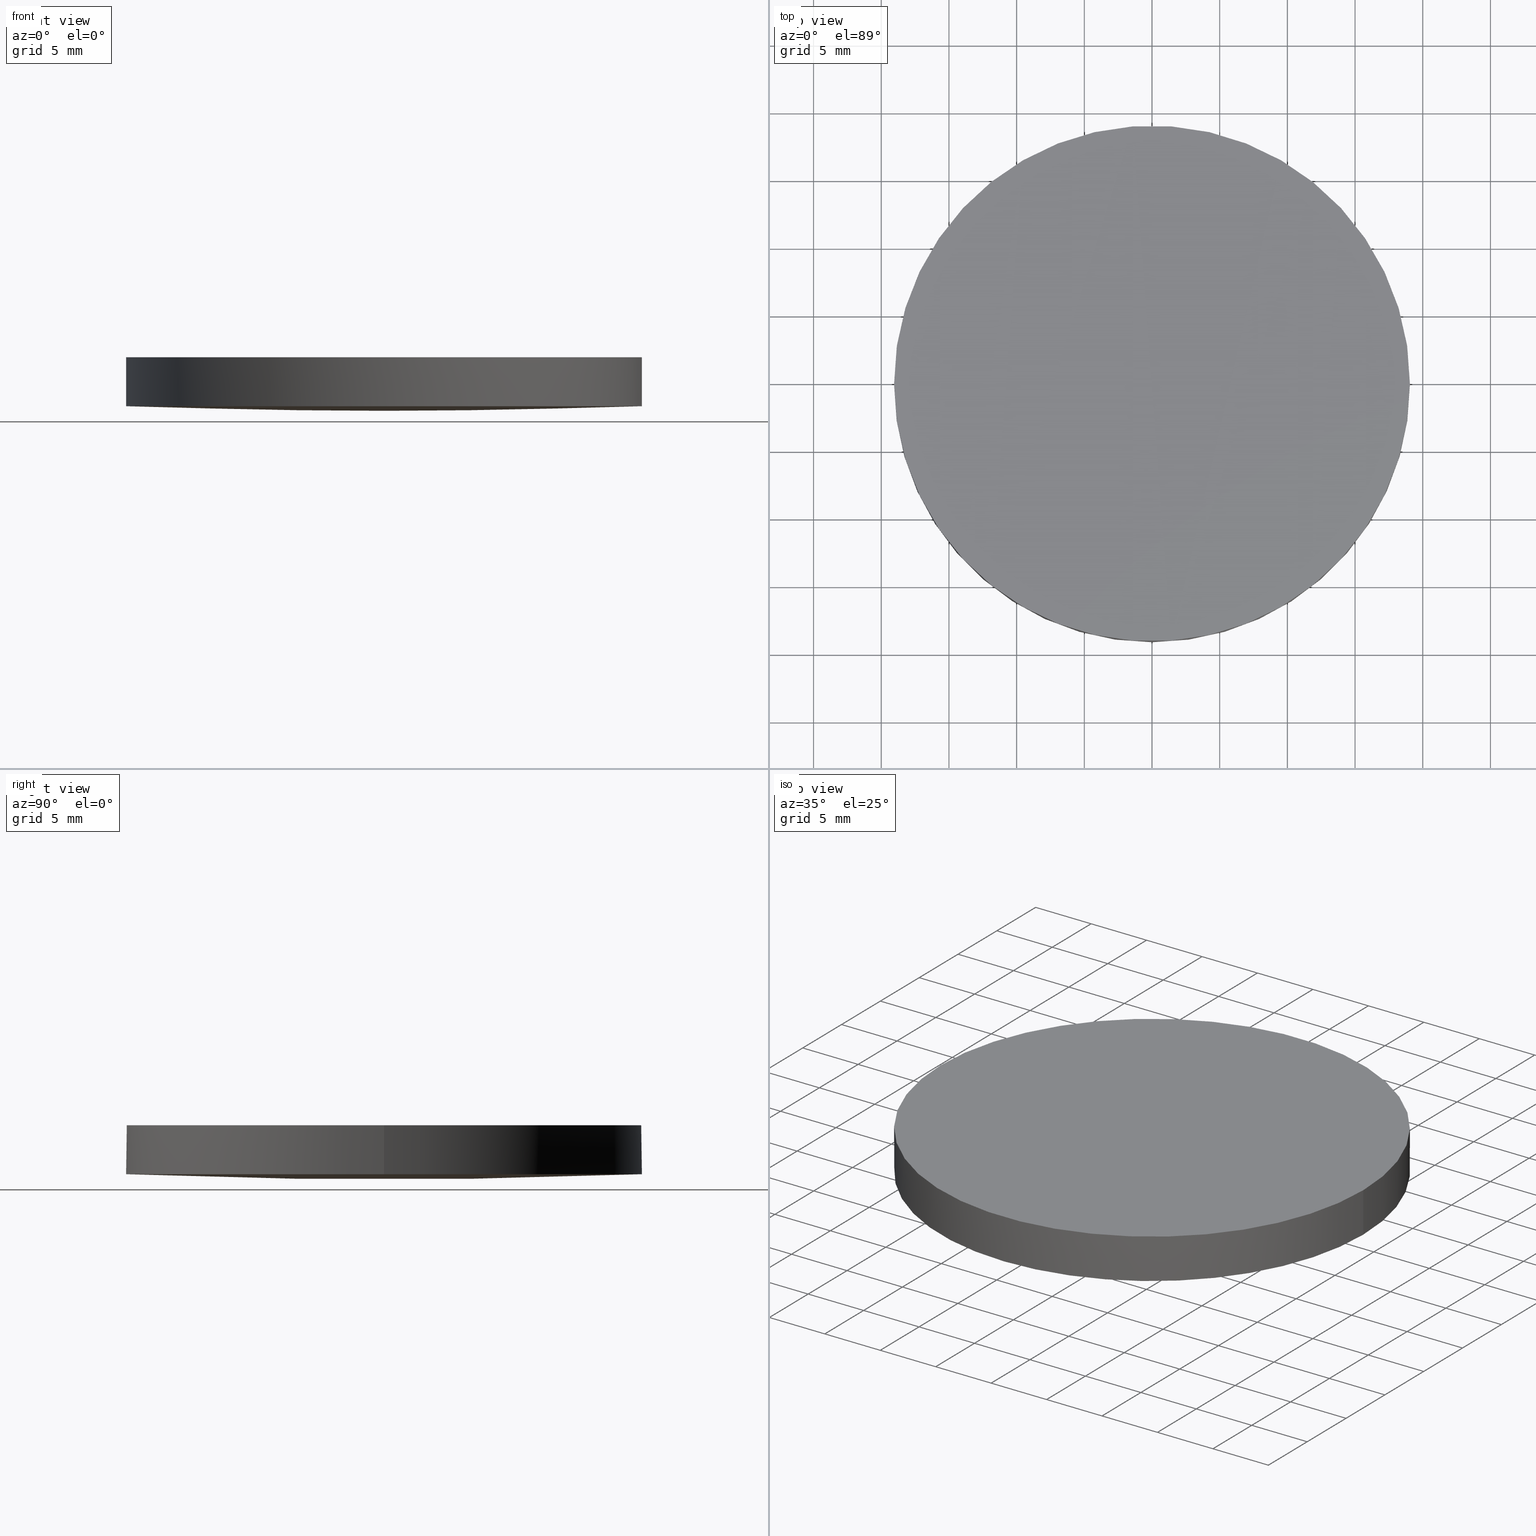
[diagram: canonical four-view strip — front | top / right | iso, engineering-drawing reading convention]
A machine part, canonical four-view strip (front | top / right | iso — engineering-drawing reading convention). The complete STEP part file that produces these views, byte-faithful:
ISO-10303-21;
HEADER;
FILE_DESCRIPTION (( 'STEP AP203' ),
    '1' );
FILE_NAME ('110-1445E UVFS pl-cx 38.1 F1000.STEP',
    '2018-12-13T15:04:24',
    ( '' ),
    ( '' ),
    'SwSTEP 2.0',
    'SolidWorks 2017',
    '' );
FILE_SCHEMA (( 'CONFIG_CONTROL_DESIGN' ));
ENDSEC;

DATA;
#1 = DIRECTION ( 'NONE',  ( 0.0000000000000000000, 0.0000000000000000000, 1.000000000000000000 ) ) ;
#2 = DESIGN_CONTEXT ( 'detailed design', #6, 'design' ) ;
#3 = PERSON_AND_ORGANIZATION ( #91, #162 ) ;
#4 = DIRECTION ( 'NONE',  ( 1.000000000000000000, 0.0000000000000000000, 0.0000000000000000000 ) ) ;
#5 = AXIS2_PLACEMENT_3D ( 'NONE', #37, #132, #112 ) ;
#6 = APPLICATION_CONTEXT ( 'configuration controlled 3d designs of mechanical parts and assemblies' ) ;
#7 = DATE_TIME_ROLE ( 'creation_date' ) ;
#8 =( LENGTH_UNIT ( ) NAMED_UNIT ( * ) SI_UNIT ( .MILLI., .METRE. ) );
#9 = ORIENTED_EDGE ( 'NONE', *, *, #221, .F. ) ;
#10 = APPROVAL_ROLE ( '' ) ;
#11 = SECURITY_CLASSIFICATION ( '', '', #141 ) ;
#12 = ADVANCED_FACE ( 'NONE', ( #20 ), #16, .T. ) ;
#13 = ORIENTED_EDGE ( 'NONE', *, *, #60, .F. ) ;
#14 = CARTESIAN_POINT ( 'NONE',  ( -6.384996450451692100, -19.27847571906545100, 0.3904768937777314300 ) ) ;
#15 = FACE_OUTER_BOUND ( 'NONE', #211, .T. ) ;
#16 = CYLINDRICAL_SURFACE ( 'NONE', #47, 19.05000000000000100 ) ;
#17 = CARTESIAN_POINT ( 'NONE',  ( 19.04999999999999700, -8.881784197001250400E-016, 0.3812727041324490100 ) ) ;
#18 = DIRECTION ( 'NONE',  ( 0.0000000000000000000, 0.0000000000000000000, 1.000000000000000000 ) ) ;
#19 = CC_DESIGN_PERSON_AND_ORGANIZATION_ASSIGNMENT ( #137, #153, ( #89 ) ) ;
#20 = FACE_OUTER_BOUND ( 'NONE', #144, .T. ) ;
#21 = DIRECTION ( 'NONE',  ( 0.0000000000000000000, 0.0000000000000000000, 1.000000000000000000 ) ) ;
#22 = DIRECTION ( 'NONE',  ( 1.000000000000000000, 0.0000000000000000000, 0.0000000000000000000 ) ) ;
#23 = EDGE_LOOP ( 'NONE', ( #26, #84, #30 ) ) ;
#24 = DATE_TIME_ROLE ( 'classification_date' ) ;
#25 = CARTESIAN_POINT ( 'NONE',  ( 19.16948050838902200, 6.429674135837180100, 0.2557364583264832300 ) ) ;
#26 = ORIENTED_EDGE ( 'NONE', *, *, #124, .T. ) ;
#27 = CALENDAR_DATE ( 2018, 13, 12 ) ;
#28 = ADVANCED_FACE ( 'NONE', ( #15 ), #43, .T. ) ;
#29 = AXIS2_PLACEMENT_3D ( 'NONE', #170, #18, #201 ) ;
#30 = ORIENTED_EDGE ( 'NONE', *, *, #33, .T. ) ;
#31 = COORDINATED_UNIVERSAL_TIME_OFFSET ( 2, 0, .AHEAD. ) ;
#32 = AXIS2_PLACEMENT_3D ( 'NONE', #199, #75, #118 ) ;
#33 = EDGE_CURVE ( 'NONE', #232, #63, #205, .T. ) ;
#34 = CARTESIAN_POINT ( 'NONE',  ( -6.384996450451685800, 19.27847571906550800, 0.3904768937777313700 ) ) ;
#35 = CARTESIAN_POINT ( 'NONE',  ( -4.662936703425659800E-015, -8.881784197001250400E-016, 0.3812727041324490100 ) ) ;
#36 = AXIS2_PLACEMENT_3D ( 'NONE', #41, #219, #4 ) ;
#37 = CARTESIAN_POINT ( 'NONE',  ( 0.0000000000000000000, 5.684341886080800200E-014, 476.1000000000000200 ) ) ;
#38 = CARTESIAN_POINT ( 'NONE',  ( 19.16948050838901800, -6.429674135837133000, 0.2557364583264818400 ) ) ;
#39 = LINE ( 'NONE', #204, #87 ) ;
#40 = DIRECTION ( 'NONE',  ( 1.000000000000000000, -1.776356839400250500E-015, 0.0000000000000000000 ) ) ;
#41 = CARTESIAN_POINT ( 'NONE',  ( -4.662936703425659800E-015, -8.881784197001250400E-016, 4.000000000000000000 ) ) ;
#42 = PERSON_AND_ORGANIZATION ( #91, #162 ) ;
#43 =( BOUNDED_SURFACE ( )  B_SPLINE_SURFACE ( 3, 3, ( 
 ( #194, #129, #14, #178 ),
 ( #71, #234, #214, #175 ),
 ( #69, #93, #146, #53 ),
 ( #110, #213, #34, #191 ) ),
 .UNSPECIFIED., .F., .F., .F. ) 
 B_SPLINE_SURFACE_WITH_KNOTS ( ( 4, 4 ),
 ( 4, 4 ),
 ( 0.0000000000000000000, 1.000000000000000000 ),
 ( 0.0000000000000000000, 1.000000000000000000 ),
 .UNSPECIFIED. ) 
 GEOMETRIC_REPRESENTATION_ITEM ( )  RATIONAL_B_SPLINE_SURFACE ( (
 ( 1.000000000000000000, 0.9998649092693817600, 0.9998649092693817600, 1.000000000000000000),
 ( 0.9994532284621189300, 0.9993182115952672400, 0.9993182115952672400, 0.9994532284621189300),
 ( 0.9994532284621189300, 0.9993182115952672400, 0.9993182115952672400, 0.9994532284621189300),
 ( 1.000000000000000000, 0.9998649092693817600, 0.9998649092693817600, 1.000000000000000000) ) ) 
 REPRESENTATION_ITEM ( '' )  SURFACE ( )  );
#44 = PERSON_AND_ORGANIZATION_ROLE ( 'classification_officer' ) ;
#45 = ORIENTED_EDGE ( 'NONE', *, *, #70, .F. ) ;
#46 = APPLICATION_PROTOCOL_DEFINITION ( 'international standard', 'config_control_design', 1994, #183 ) ;
#47 = AXIS2_PLACEMENT_3D ( 'NONE', #35, #177, #210 ) ;
#48 = LOCAL_TIME ( 17, 4, 24.00000000000000000, #208 ) ;
#49 = EDGE_CURVE ( 'NONE', #173, #51, #207, .T. ) ;
#50 = APPROVAL_DATE_TIME ( #154, #92 ) ;
#51 = VERTEX_POINT ( 'NONE', #109 ) ;
#52 = CALENDAR_DATE ( 2018, 13, 12 ) ;
#53 = CARTESIAN_POINT ( 'NONE',  ( -2.151057110211240800E-013, 6.429674135837183600, -0.1302301707433373400 ) ) ;
#54 = LOCAL_TIME ( 17, 4, 24.00000000000000000, #85 ) ;
#55 = AXIS2_PLACEMENT_3D ( 'NONE', #138, #134, #151 ) ;
#56 = DIRECTION ( 'NONE',  ( 1.000000000000000000, 0.0000000000000000000, 0.0000000000000000000 ) ) ;
#57 = CARTESIAN_POINT ( 'NONE',  ( 6.391985406100275200, 6.429674135837181800, -0.1302301707433202200 ) ) ;
#58 = PRODUCT_DEFINITION ( 'UNKNOWN', '', #89, #2 ) ;
#59 = DIRECTION ( 'NONE',  ( -0.0000000000000000000, -0.0000000000000000000, -1.000000000000000000 ) ) ;
#60 = EDGE_CURVE ( 'NONE', #51, #232, #157, .T. ) ;
#61 = PERSON_AND_ORGANIZATION ( #91, #162 ) ;
#62 = MECHANICAL_CONTEXT ( 'NONE', #183, 'mechanical' ) ;
#63 = VERTEX_POINT ( 'NONE', #17 ) ;
#64 = APPROVAL ( #100, 'UNSPECIFIED' ) ;
#65 = FACE_OUTER_BOUND ( 'NONE', #130, .T. ) ;
#66 = CC_DESIGN_APPROVAL ( #176, ( #58 ) ) ;
#67 = ORIENTED_EDGE ( 'NONE', *, *, #124, .F. ) ;
#68 = PRODUCT_DEFINITION_SHAPE ( 'NONE', 'NONE',  #58 ) ;
#69 = CARTESIAN_POINT ( 'NONE',  ( -19.16948050838896800, 6.429674135837188100, 0.2557364583264727400 ) ) ;
#70 = EDGE_CURVE ( 'NONE', #173, #232, #106, .T. ) ;
#71 = CARTESIAN_POINT ( 'NONE',  ( -19.16948050838897200, -6.429674135837125000, 0.2557364583264711800 ) ) ;
#72 = VERTEX_POINT ( 'NONE', #114 ) ;
#73 = DIRECTION ( 'NONE',  ( -0.0000000000000000000, -0.0000000000000000000, -1.000000000000000000 ) ) ;
#74 = CC_DESIGN_PERSON_AND_ORGANIZATION_ASSIGNMENT ( #94, #203, ( #58 ) ) ;
#75 = DIRECTION ( 'NONE',  ( -0.0000000000000000000, -0.0000000000000000000, -1.000000000000000000 ) ) ;
#76 = ORIENTED_EDGE ( 'NONE', *, *, #86, .F. ) ;
#77 = DIRECTION ( 'NONE',  ( -0.0000000000000000000, -0.0000000000000000000, -1.000000000000000000 ) ) ;
#78 = CARTESIAN_POINT ( 'NONE',  ( 6.384996450451490400, -19.27847571906545100, 0.3904768937777455300 ) ) ;
#79 = APPROVAL_DATE_TIME ( #202, #64 ) ;
#80 = CC_DESIGN_PERSON_AND_ORGANIZATION_ASSIGNMENT ( #150, #227, ( #89 ) ) ;
#81 = ORIENTED_EDGE ( 'NONE', *, *, #60, .T. ) ;
#82 =( NAMED_UNIT ( * ) SI_UNIT ( $, .STERADIAN. ) SOLID_ANGLE_UNIT ( ) );
#83 = APPROVAL_ROLE ( '' ) ;
#84 = ORIENTED_EDGE ( 'NONE', *, *, #70, .T. ) ;
#85 = COORDINATED_UNIVERSAL_TIME_OFFSET ( 2, 0, .AHEAD. ) ;
#86 = EDGE_CURVE ( 'NONE', #72, #181, #148, .T. ) ;
#87 = VECTOR ( 'NONE', #102, 1000.000000000000000 ) ;
#88 = CALENDAR_DATE ( 2018, 13, 12 ) ;
#89 = PRODUCT_DEFINITION_FORMATION_WITH_SPECIFIED_SOURCE ( 'ANY', '', #198, .NOT_KNOWN. ) ;
#90 = FACE_OUTER_BOUND ( 'NONE', #23, .T. ) ;
#91 = PERSON ( 'UNSPECIFIED', 'UNSPECIFIED', 'UNSPECIFIED', ('UNSPECIFIED'), ('UNSPECIFIED'), ('UNSPECIFIED') ) ;
#92 = APPROVAL ( #226, 'UNSPECIFIED' ) ;
#93 = CARTESIAN_POINT ( 'NONE',  ( -12.78267556523280700, 6.429674135837184500, -0.001557245200525965700 ) ) ;
#94 = PERSON_AND_ORGANIZATION ( #91, #162 ) ;
#95 = CARTESIAN_POINT ( 'NONE',  ( 19.14852072194215900, -19.27847571906545800, 0.7760215094227525000 ) ) ;
#96 = PLANE ( 'NONE',  #218 ) ;
#97 = CIRCLE ( 'NONE', #36, 19.05000000000000100 ) ;
#98 = CC_DESIGN_DATE_AND_TIME_ASSIGNMENT ( #216, #7, ( #58 ) ) ;
#99 = EDGE_CURVE ( 'NONE', #63, #181, #126, .T. ) ;
#100 = APPROVAL_STATUS ( 'not_yet_approved' ) ;
#101 = SHAPE_DEFINITION_REPRESENTATION ( #68, #228 ) ;
#102 = DIRECTION ( 'NONE',  ( 0.0000000000000000000, 0.0000000000000000000, 1.000000000000000000 ) ) ;
#103 = APPROVAL_PERSON_ORGANIZATION ( #105, #176, #83 ) ;
#104 = ADVANCED_FACE ( 'NONE', ( #174 ), #96, .T. ) ;
#105 = PERSON_AND_ORGANIZATION ( #91, #162 ) ;
#106 = CIRCLE ( 'NONE', #5, 476.1000000000000200 ) ;
#107 = AXIS2_PLACEMENT_3D ( 'NONE', #233, #59, #40 ) ;
#108 = COORDINATED_UNIVERSAL_TIME_OFFSET ( 2, 0, .AHEAD. ) ;
#109 = CARTESIAN_POINT ( 'NONE',  ( -19.05000000000000400, 1.444773732675583000E-015, 0.3812727041324490100 ) ) ;
#110 = CARTESIAN_POINT ( 'NONE',  ( -19.14852072194210900, 19.27847571906551500, 0.7760215094227418400 ) ) ;
#111 = CYLINDRICAL_SURFACE ( 'NONE', #29, 19.05000000000000100 ) ;
#112 = DIRECTION ( 'NONE',  ( -2.441384245984629400E-016, -1.000000000000000000, 0.0000000000000000000 ) ) ;
#113 = AXIS2_PLACEMENT_3D ( 'NONE', #156, #155, #22 ) ;
#114 = CARTESIAN_POINT ( 'NONE',  ( -19.05000000000000400, 1.444773732675583000E-015, 4.000000000000000000 ) ) ;
#115 = CARTESIAN_POINT ( 'NONE',  ( -4.662936703425659800E-015, -8.881784197001250400E-016, 0.3812727041324490100 ) ) ;
#116 = DIRECTION ( 'NONE',  ( 1.000000000000000000, 0.0000000000000000000, -0.0000000000000000000 ) ) ;
#117 = EDGE_LOOP ( 'NONE', ( #169, #76 ) ) ;
#118 = DIRECTION ( 'NONE',  ( 1.000000000000000000, 0.0000000000000000000, 0.0000000000000000000 ) ) ;
#119 = CALENDAR_DATE ( 2018, 13, 12 ) ;
#120 = APPLICATION_PROTOCOL_DEFINITION ( 'international standard', 'config_control_design', 1994, #6 ) ;
#121 = AXIS2_PLACEMENT_3D ( 'NONE', #165, #73, #56 ) ;
#122 = CARTESIAN_POINT ( 'NONE',  ( 19.14852072194216600, 19.27847571906550800, 0.7760215094227525000 ) ) ;
#123 = CLOSED_SHELL ( 'NONE', ( #189, #12, #28, #125, #104 ) ) ;
#124 = EDGE_CURVE ( 'NONE', #63, #173, #186, .T. ) ;
#125 = ADVANCED_FACE ( 'NONE', ( #65 ), #111, .T. ) ;
#126 = LINE ( 'NONE', #217, #163 ) ;
#127 = ORIENTED_EDGE ( 'NONE', *, *, #99, .F. ) ;
#128 =( BOUNDED_SURFACE ( )  B_SPLINE_SURFACE ( 3, 3, ( 
 ( #136, #78, #196, #95 ),
 ( #215, #180, #235, #38 ),
 ( #166, #57, #182, #25 ),
 ( #160, #185, #224, #122 ) ),
 .UNSPECIFIED., .F., .F., .F. ) 
 B_SPLINE_SURFACE_WITH_KNOTS ( ( 4, 4 ),
 ( 4, 4 ),
 ( 0.0000000000000000000, 1.000000000000000000 ),
 ( 0.0000000000000000000, 1.000000000000000000 ),
 .UNSPECIFIED. ) 
 GEOMETRIC_REPRESENTATION_ITEM ( )  RATIONAL_B_SPLINE_SURFACE ( (
 ( 1.000000000000000000, 0.9998649092693817600, 0.9998649092693817600, 1.000000000000000000),
 ( 0.9994532284621189300, 0.9993182115952672400, 0.9993182115952672400, 0.9994532284621189300),
 ( 0.9994532284621189300, 0.9993182115952672400, 0.9993182115952672400, 0.9994532284621189300),
 ( 1.000000000000000000, 0.9998649092693817600, 0.9998649092693817600, 1.000000000000000000) ) ) 
 REPRESENTATION_ITEM ( '' )  SURFACE ( )  );
#129 = CARTESIAN_POINT ( 'NONE',  ( -12.76869907014993700, -19.27847571906544700, 0.5190091291730060100 ) ) ;
#130 = EDGE_LOOP ( 'NONE', ( #9, #209, #67, #190, #225 ) ) ;
#131 = COORDINATED_UNIVERSAL_TIME_OFFSET ( 2, 0, .AHEAD. ) ;
#132 = DIRECTION ( 'NONE',  ( 1.000000000000000000, -2.441384245984629900E-016, -2.109852854684000100E-016 ) ) ;
#133 = ORIENTED_EDGE ( 'NONE', *, *, #49, .T. ) ;
#134 = DIRECTION ( 'NONE',  ( -0.0000000000000000000, -0.0000000000000000000, -1.000000000000000000 ) ) ;
#135 = CC_DESIGN_APPROVAL ( #92, ( #11 ) ) ;
#136 = CARTESIAN_POINT ( 'NONE',  ( -1.050743262233151200E-013, -19.27847571906545500, 0.3904768937777469700 ) ) ;
#137 = PERSON_AND_ORGANIZATION ( #91, #162 ) ;
#138 = CARTESIAN_POINT ( 'NONE',  ( -4.662936703425659800E-015, -8.881784197001250400E-016, 0.3812727041324490100 ) ) ;
#139 = APPROVAL_STATUS ( 'not_yet_approved' ) ;
#140 = LOCAL_TIME ( 17, 4, 24.00000000000000000, #131 ) ;
#141 = SECURITY_CLASSIFICATION_LEVEL ( 'unclassified' ) ;
#142 = CC_DESIGN_APPROVAL ( #64, ( #89 ) ) ;
#143 = CARTESIAN_POINT ( 'NONE',  ( -9.571881449258180800E-014, 19.05000000000018500, 0.3812727041324557900 ) ) ;
#144 = EDGE_LOOP ( 'NONE', ( #13, #197, #200, #127, #229 ) ) ;
#145 = APPROVAL_DATE_TIME ( #179, #176 ) ;
#146 = CARTESIAN_POINT ( 'NONE',  ( -6.391985406100468800, 6.429674135837183600, -0.1302301707433344300 ) ) ;
#147 = DATE_AND_TIME ( #27, #140 ) ;
#148 = CIRCLE ( 'NONE', #121, 19.05000000000000100 ) ;
#149 = CC_DESIGN_DATE_AND_TIME_ASSIGNMENT ( #147, #24, ( #11 ) ) ;
#150 = PERSON_AND_ORGANIZATION ( #91, #162 ) ;
#151 = DIRECTION ( 'NONE',  ( 1.000000000000000000, 8.881784197001252300E-016, 0.0000000000000000000 ) ) ;
#152 = DIRECTION ( 'NONE',  ( 1.000000000000000000, 0.0000000000000000000, 0.0000000000000000000 ) ) ;
#153 = PERSON_AND_ORGANIZATION_ROLE ( 'creator' ) ;
#154 = DATE_AND_TIME ( #88, #54 ) ;
#155 = DIRECTION ( 'NONE',  ( 0.0000000000000000000, 0.0000000000000000000, 1.000000000000000000 ) ) ;
#156 = CARTESIAN_POINT ( 'NONE',  ( 0.0000000000000000000, 0.0000000000000000000, 0.0000000000000000000 ) ) ;
#157 = CIRCLE ( 'NONE', #55, 19.05000000000000100 ) ;
#158 =( NAMED_UNIT ( * ) PLANE_ANGLE_UNIT ( ) SI_UNIT ( $, .RADIAN. ) );
#159 = EDGE_CURVE ( 'NONE', #181, #72, #97, .T. ) ;
#160 = CARTESIAN_POINT ( 'NONE',  ( -9.566109284189036800E-014, 19.27847571906551100, 0.3904768937777469700 ) ) ;
#161 =( GEOMETRIC_REPRESENTATION_CONTEXT ( 3 ) GLOBAL_UNCERTAINTY_ASSIGNED_CONTEXT ( ( #192 ) ) GLOBAL_UNIT_ASSIGNED_CONTEXT ( ( #8, #158, #82 ) ) REPRESENTATION_CONTEXT ( 'NONE', 'WORKASPACE' ) );
#162 = ORGANIZATION ( 'UNSPECIFIED', 'UNSPECIFIED', '' ) ;
#163 = VECTOR ( 'NONE', #1, 1000.000000000000000 ) ;
#164 = LOCAL_TIME ( 17, 4, 24.00000000000000000, #31 ) ;
#165 = CARTESIAN_POINT ( 'NONE',  ( -4.662936703425659800E-015, -8.881784197001250400E-016, 4.000000000000000000 ) ) ;
#166 = CARTESIAN_POINT ( 'NONE',  ( -9.890784054705136200E-014, 6.429674135837184500, -0.1302301707433188300 ) ) ;
#167 = CARTESIAN_POINT ( 'NONE',  ( -1.050204884697833200E-013, -19.05000000000012900, 0.3812727041324557900 ) ) ;
#168 = MANIFOLD_SOLID_BREP ( 'Imported1', #123 ) ;
#169 = ORIENTED_EDGE ( 'NONE', *, *, #159, .F. ) ;
#170 = CARTESIAN_POINT ( 'NONE',  ( -4.662936703425659800E-015, -8.881784197001250400E-016, 0.3812727041324490100 ) ) ;
#171 = APPROVAL_ROLE ( '' ) ;
#172 = PERSON_AND_ORGANIZATION_ROLE ( 'design_owner' ) ;
#173 = VERTEX_POINT ( 'NONE', #167 ) ;
#174 = FACE_OUTER_BOUND ( 'NONE', #117, .T. ) ;
#175 = CARTESIAN_POINT ( 'NONE',  ( -2.185751579730777200E-013, -6.429674135837129400, -0.1302301707433387900 ) ) ;
#176 = APPROVAL ( #139, 'UNSPECIFIED' ) ;
#177 = DIRECTION ( 'NONE',  ( 0.0000000000000000000, 0.0000000000000000000, 1.000000000000000000 ) ) ;
#178 = CARTESIAN_POINT ( 'NONE',  ( -2.185751579730776900E-013, -19.27847571906545500, 0.3904768937777284800 ) ) ;
#179 = DATE_AND_TIME ( #52, #164 ) ;
#180 = CARTESIAN_POINT ( 'NONE',  ( 6.391985406100271700, -6.429674135837129400, -0.1302301707433216300 ) ) ;
#181 = VERTEX_POINT ( 'NONE', #220 ) ;
#182 = CARTESIAN_POINT ( 'NONE',  ( 12.78267556523273800, 6.429674135837180900, -0.001557245200521032600 ) ) ;
#183 = APPLICATION_CONTEXT ( 'configuration controlled 3d designs of mechanical parts and assemblies' ) ;
#184 = CC_DESIGN_PERSON_AND_ORGANIZATION_ASSIGNMENT ( #231, #172, ( #198 ) ) ;
#185 = CARTESIAN_POINT ( 'NONE',  ( 6.384996450451500200, 19.27847571906550800, 0.3904768937777455300 ) ) ;
#186 = CIRCLE ( 'NONE', #230, 19.05000000000000100 ) ;
#187 = CC_DESIGN_PERSON_AND_ORGANIZATION_ASSIGNMENT ( #3, #44, ( #11 ) ) ;
#188 = LOCAL_TIME ( 17, 4, 24.00000000000000000, #108 ) ;
#189 = ADVANCED_FACE ( 'NONE', ( #90 ), #128, .T. ) ;
#190 = ORIENTED_EDGE ( 'NONE', *, *, #99, .T. ) ;
#191 = CARTESIAN_POINT ( 'NONE',  ( -2.116362640691704700E-013, 19.27847571906551100, 0.3904768937777283700 ) ) ;
#192 = UNCERTAINTY_MEASURE_WITH_UNIT (LENGTH_MEASURE( 1.000000000000000100E-005 ), #8, 'distance_accuracy_value', 'NONE');
#193 = CALENDAR_DATE ( 2018, 13, 12 ) ;
#194 = CARTESIAN_POINT ( 'NONE',  ( -19.14852072194211600, -19.27847571906545500, 0.7760215094227418400 ) ) ;
#195 = CC_DESIGN_SECURITY_CLASSIFICATION ( #11, ( #89 ) ) ;
#196 = CARTESIAN_POINT ( 'NONE',  ( 12.76869907014985700, -19.27847571906545500, 0.5190091291730112300 ) ) ;
#197 = ORIENTED_EDGE ( 'NONE', *, *, #221, .T. ) ;
#198 = PRODUCT ( '110-1445E UVFS pl-cx 38.1 F1000', '110-1445E UVFS pl-cx 38.1 F1000', '', ( #62 ) ) ;
#199 = CARTESIAN_POINT ( 'NONE',  ( -4.662936703425659800E-015, -8.881784197001250400E-016, 0.3812727041324490100 ) ) ;
#200 = ORIENTED_EDGE ( 'NONE', *, *, #86, .T. ) ;
#201 = DIRECTION ( 'NONE',  ( 1.000000000000000000, 0.0000000000000000000, 0.0000000000000000000 ) ) ;
#202 = DATE_AND_TIME ( #193, #48 ) ;
#203 = PERSON_AND_ORGANIZATION_ROLE ( 'creator' ) ;
#204 = CARTESIAN_POINT ( 'NONE',  ( -19.05000000000000400, 1.444773732675583000E-015, 0.3812727041324490100 ) ) ;
#205 = CIRCLE ( 'NONE', #107, 19.05000000000000100 ) ;
#206 = PRODUCT_RELATED_PRODUCT_CATEGORY ( 'detail', '', ( #198 ) ) ;
#207 = CIRCLE ( 'NONE', #32, 19.05000000000000100 ) ;
#208 = COORDINATED_UNIVERSAL_TIME_OFFSET ( 2, 0, .AHEAD. ) ;
#209 = ORIENTED_EDGE ( 'NONE', *, *, #49, .F. ) ;
#210 = DIRECTION ( 'NONE',  ( 1.000000000000000000, 0.0000000000000000000, 0.0000000000000000000 ) ) ;
#211 = EDGE_LOOP ( 'NONE', ( #45, #133, #81 ) ) ;
#212 = APPROVAL_PERSON_ORGANIZATION ( #61, #92, #171 ) ;
#213 = CARTESIAN_POINT ( 'NONE',  ( -12.76869907014993000, 19.27847571906551100, 0.5190091291730060100 ) ) ;
#214 = CARTESIAN_POINT ( 'NONE',  ( -6.391985406100472400, -6.429674135837126800, -0.1302301707433358400 ) ) ;
#215 = CARTESIAN_POINT ( 'NONE',  ( -1.020473015754609000E-013, -6.429674135837128500, -0.1302301707433202400 ) ) ;
#216 = DATE_AND_TIME ( #119, #188 ) ;
#217 = CARTESIAN_POINT ( 'NONE',  ( 19.04999999999999700, -8.881784197001250400E-016, 0.3812727041324490100 ) ) ;
#218 = AXIS2_PLACEMENT_3D ( 'NONE', #223, #21, #116 ) ;
#219 = DIRECTION ( 'NONE',  ( -0.0000000000000000000, -0.0000000000000000000, -1.000000000000000000 ) ) ;
#220 = CARTESIAN_POINT ( 'NONE',  ( 19.04999999999999700, -8.881784197001250400E-016, 4.000000000000000000 ) ) ;
#221 = EDGE_CURVE ( 'NONE', #51, #72, #39, .T. ) ;
#222 = APPROVAL_PERSON_ORGANIZATION ( #42, #64, #10 ) ;
#223 = CARTESIAN_POINT ( 'NONE',  ( 0.0000000000000000000, 39.06600000000000300, 4.000000000000000000 ) ) ;
#224 = CARTESIAN_POINT ( 'NONE',  ( 12.76869907014986400, 19.27847571906550400, 0.5190091291730112300 ) ) ;
#225 = ORIENTED_EDGE ( 'NONE', *, *, #159, .T. ) ;
#226 = APPROVAL_STATUS ( 'not_yet_approved' ) ;
#227 = PERSON_AND_ORGANIZATION_ROLE ( 'design_supplier' ) ;
#228 = ADVANCED_BREP_SHAPE_REPRESENTATION ( '110-1445E UVFS pl-cx 38.1 F1000', ( #168, #113 ), #161 ) ;
#229 = ORIENTED_EDGE ( 'NONE', *, *, #33, .F. ) ;
#230 = AXIS2_PLACEMENT_3D ( 'NONE', #115, #77, #152 ) ;
#231 = PERSON_AND_ORGANIZATION ( #91, #162 ) ;
#232 = VERTEX_POINT ( 'NONE', #143 ) ;
#233 = CARTESIAN_POINT ( 'NONE',  ( -4.662936703425659800E-015, -8.881784197001250400E-016, 0.3812727041324490100 ) ) ;
#234 = CARTESIAN_POINT ( 'NONE',  ( -12.78267556523281100, -6.429674135837125900, -0.001557245200527537800 ) ) ;
#235 = CARTESIAN_POINT ( 'NONE',  ( 12.78267556523273500, -6.429674135837130300, -0.001557245200522387800 ) ) ;
ENDSEC;
END-ISO-10303-21;
